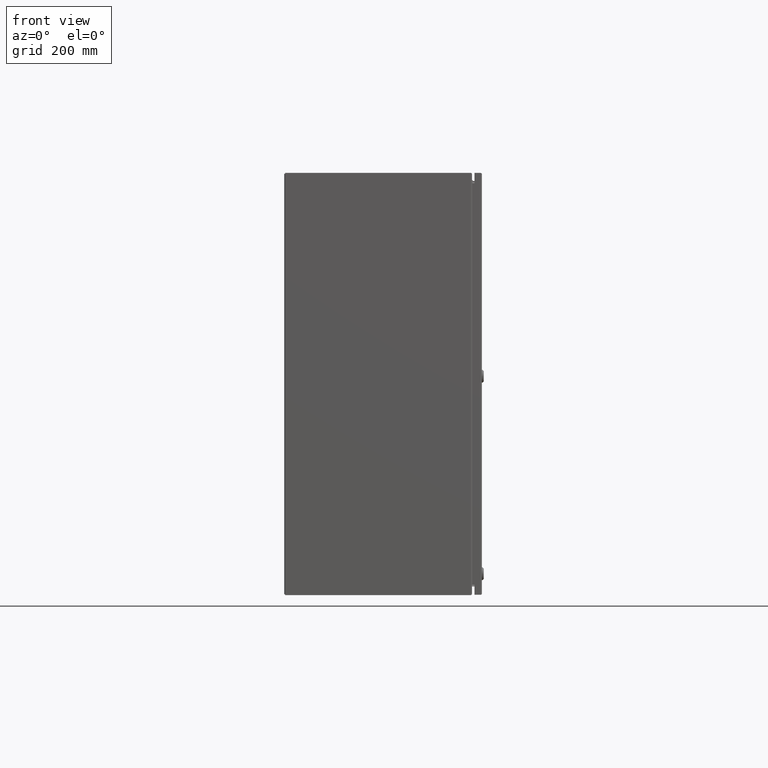
[diagram: clean part render]
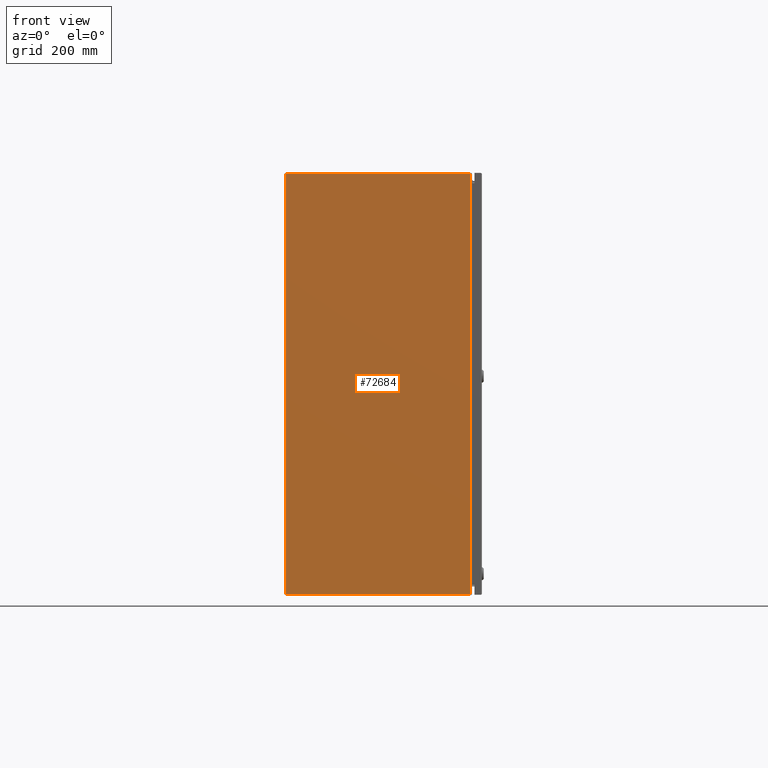
[diagram: same view with one face highlighted and labeled with its STEP entity id]
A machine part, front view. The second image highlights one B-rep face of the part: STEP entity #72684.
In plain terms, the highlighted planar face has unit normal (-0, 1, 0).
Its self-contained STEP definition (entity closure, byte-faithful):
#10 = DIRECTION ( 'NONE',  ( -1.742722353740179918E-17, 1.224646799147350002E-16, 1.000000000000000000 ) ) ;
#4913 = EDGE_LOOP ( 'NONE', ( #63444, #80958, #61167, #5683 ) ) ;
#5683 = ORIENTED_EDGE ( 'NONE', *, *, #5971, .F. ) ;
#5971 = EDGE_CURVE ( 'NONE', #38094, #19566, #81964, .T. ) ;
#6814 = PLANE ( 'NONE',  #47955 ) ;
#11774 = VECTOR ( 'NONE', #50148, 39.37007874015748143 ) ;
#14200 = EDGE_CURVE ( 'NONE', #76865, #67173, #73165, .T. ) ;
#15553 = CARTESIAN_POINT ( 'NONE',  ( 125.4060000000000059, -15.89199999999999946, -24.00000000000000355 ) ) ;
#16522 = EDGE_CURVE ( 'NONE', #76865, #19566, #71741, .T. ) ;
#19566 = VERTEX_POINT ( 'NONE', #23896 ) ;
#21689 = CARTESIAN_POINT ( 'NONE',  ( -17.92800000000002214, -0.1080000000000023441, -23.99999999999999645 ) ) ;
#23896 = CARTESIAN_POINT ( 'NONE',  ( 17.92800000000000082, -15.89199999999999946, -24.00000000000000355 ) ) ;
#28875 = VECTOR ( 'NONE', #84876, 39.37007874015748143 ) ;
#29818 = CARTESIAN_POINT ( 'NONE',  ( -17.92800000000000082, -15.89199999999999946, -24.00000000000000711 ) ) ;
#38094 = VERTEX_POINT ( 'NONE', #29818 ) ;
#42768 = LINE ( 'NONE', #69991, #65727 ) ;
#42953 = VECTOR ( 'NONE', #60866, 39.37007874015748143 ) ;
#47955 = AXIS2_PLACEMENT_3D ( 'NONE', #66802, #10, #73551 ) ;
#49912 = DIRECTION ( 'NONE',  ( -3.081487911019580102E-33, 1.000000000000000000, -4.310752093372784644E-49 ) ) ;
#50148 = DIRECTION ( 'NONE',  ( 1.000000000000000000, 2.134219352310447045E-33, 1.742722353740179918E-17 ) ) ;
#51339 = CARTESIAN_POINT ( 'NONE',  ( 17.92800000000000082, -0.07199999999999842637, -24.00000000000000355 ) ) ;
#54432 = CARTESIAN_POINT ( 'NONE',  ( 17.92800000000003990, -0.1080000000000023441, -24.00000000000000355 ) ) ;
#60866 = DIRECTION ( 'NONE',  ( -1.000000000000000000, -3.081487911019580102E-33, 2.263789338623530087E-16 ) ) ;
#61167 = ORIENTED_EDGE ( 'NONE', *, *, #16522, .T. ) ;
#63444 = ORIENTED_EDGE ( 'NONE', *, *, #82083, .T. ) ;
#65727 = VECTOR ( 'NONE', #49912, 39.37007874015748143 ) ;
#66802 = CARTESIAN_POINT ( 'NONE',  ( 125.4060000000000059, -16.00000000000000000, -24.00000000000000355 ) ) ;
#67173 = VERTEX_POINT ( 'NONE', #21689 ) ;
#69991 = CARTESIAN_POINT ( 'NONE',  ( -17.92800000000000082, -0.07199999999998976663, -24.00000000000000355 ) ) ;
#70835 = CARTESIAN_POINT ( 'NONE',  ( 17.92800000000002214, -0.1080000000000023441, -24.00000000000000355 ) ) ;
#71741 = LINE ( 'NONE', #51339, #28875 ) ;
#72684 = ADVANCED_FACE ( 'NONE', ( #76522 ), #6814, .F. ) ;
#73165 = LINE ( 'NONE', #54432, #42953 ) ;
#73551 = DIRECTION ( 'NONE',  ( 0.0000000000000000000, -1.000000000000000000, 1.224646799147350002E-16 ) ) ;
#76522 = FACE_OUTER_BOUND ( 'NONE', #4913, .T. ) ;
#76865 = VERTEX_POINT ( 'NONE', #70835 ) ;
#80958 = ORIENTED_EDGE ( 'NONE', *, *, #14200, .F. ) ;
#81964 = LINE ( 'NONE', #15553, #11774 ) ;
#82083 = EDGE_CURVE ( 'NONE', #38094, #67173, #42768, .T. ) ;
#84876 = DIRECTION ( 'NONE',  ( 6.162975822039149940E-33, -1.000000000000000000, -6.473433040620013272E-49 ) ) ;